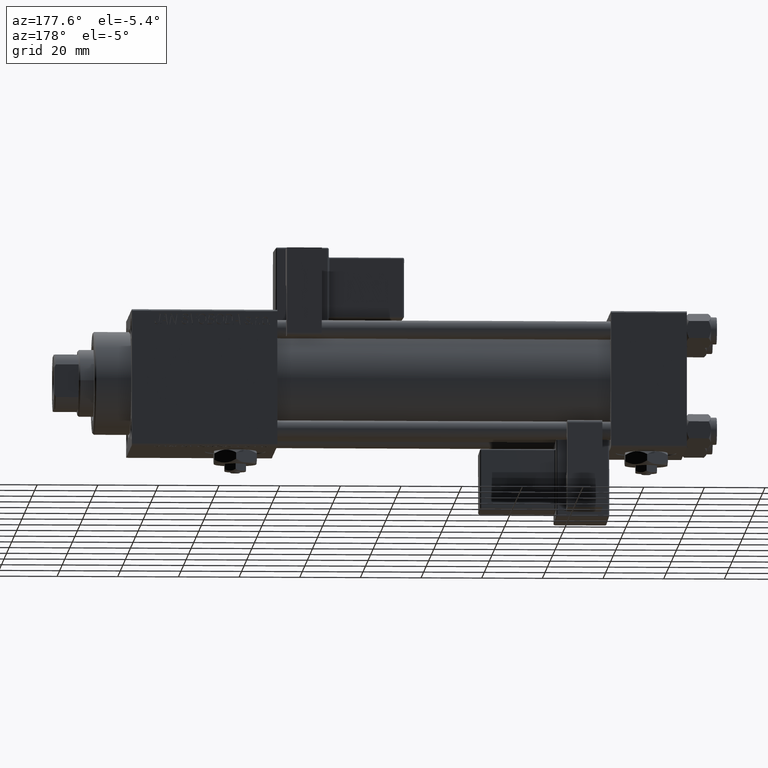
[diagram: clean part render]
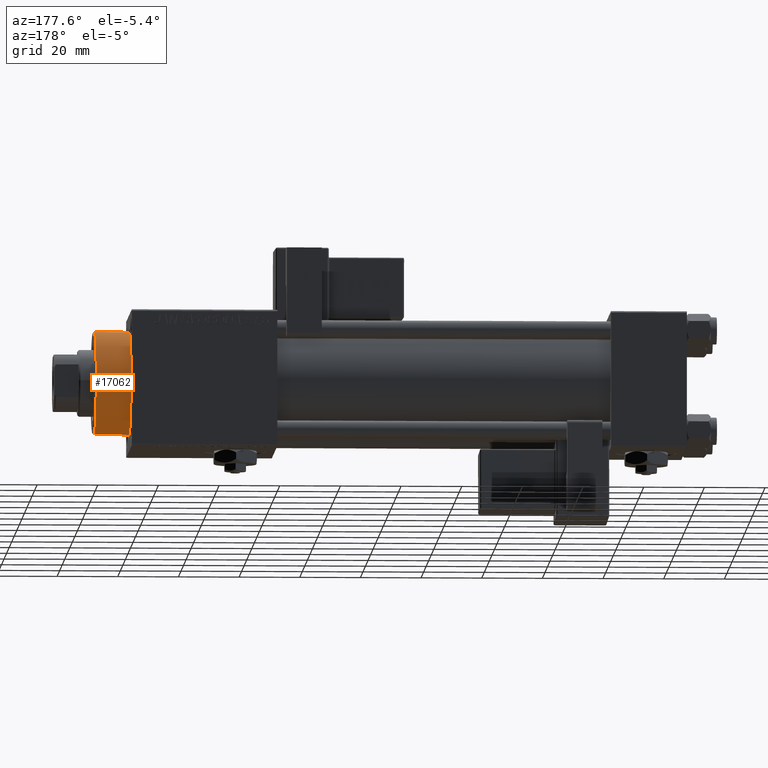
[diagram: same view with one face highlighted and labeled with its STEP entity id]
A machine part, auxiliary view. The second image highlights one B-rep face of the part: STEP entity #17062.
In plain terms, the highlighted cylindrical surface (partial cylindrical patch) has radius 17 mm, axis along (-1, -0, -0).
Its self-contained STEP definition (entity closure, byte-faithful):
#1373 = CARTESIAN_POINT ( 'NONE',  ( 17.00000000000000000, 2.081899558550500280E-15, 40.19999999999999574 ) ) ;
#1840 = CARTESIAN_POINT ( 'NONE',  ( 0.000000000000000000, 0.000000000000000000, 28.69999999999999929 ) ) ;
#2696 = LINE ( 'NONE', #19900, #8208 ) ;
#5946 = AXIS2_PLACEMENT_3D ( 'NONE', #52125, #13479, #39434 ) ;
#7276 = EDGE_LOOP ( 'NONE', ( #46513, #54815, #14120, #15779 ) ) ;
#8208 = VECTOR ( 'NONE', #37109, 1000.000000000000000 ) ;
#8328 = VECTOR ( 'NONE', #11072, 1000.000000000000000 ) ;
#11072 = DIRECTION ( 'NONE',  ( -0.000000000000000000, -0.000000000000000000, -1.000000000000000000 ) ) ;
#13479 = DIRECTION ( 'NONE',  ( 0.000000000000000000, 0.000000000000000000, -1.000000000000000000 ) ) ;
#14120 = ORIENTED_EDGE ( 'NONE', *, *, #41898, .T. ) ;
#14584 = FACE_OUTER_BOUND ( 'NONE', #7276, .T. ) ;
#15779 = ORIENTED_EDGE ( 'NONE', *, *, #17900, .F. ) ;
#17062 = ADVANCED_FACE ( 'NONE', ( #14584 ), #49547, .T. ) ;
#17900 = EDGE_CURVE ( 'NONE', #45756, #44098, #2696, .T. ) ;
#18542 = DIRECTION ( 'NONE',  ( -1.000000000000000000, 0.000000000000000000, 0.000000000000000000 ) ) ;
#19735 = CARTESIAN_POINT ( 'NONE',  ( 17.00000000000000000, 2.081899558550500280E-15, 28.69999999999999929 ) ) ;
#19900 = CARTESIAN_POINT ( 'NONE',  ( -17.00000000000000000, 0.000000000000000000, 40.70000000000000284 ) ) ;
#20648 = LINE ( 'NONE', #55319, #8328 ) ;
#25957 = EDGE_CURVE ( 'NONE', #45756, #31614, #46453, .T. ) ;
#30990 = AXIS2_PLACEMENT_3D ( 'NONE', #1840, #35696, #52915 ) ;
#31521 = CARTESIAN_POINT ( 'NONE',  ( 0.000000000000000000, 0.000000000000000000, 40.70000000000000284 ) ) ;
#31614 = VERTEX_POINT ( 'NONE', #1373 ) ;
#35696 = DIRECTION ( 'NONE',  ( 0.000000000000000000, 0.000000000000000000, 1.000000000000000000 ) ) ;
#36856 = DIRECTION ( 'NONE',  ( -0.000000000000000000, -0.000000000000000000, -1.000000000000000000 ) ) ;
#37109 = DIRECTION ( 'NONE',  ( -0.000000000000000000, -0.000000000000000000, -1.000000000000000000 ) ) ;
#39434 = DIRECTION ( 'NONE',  ( 1.000000000000000000, 0.000000000000000000, 0.000000000000000000 ) ) ;
#39509 = EDGE_CURVE ( 'NONE', #31614, #52325, #20648, .T. ) ;
#41898 = EDGE_CURVE ( 'NONE', #52325, #44098, #55285, .T. ) ;
#44098 = VERTEX_POINT ( 'NONE', #44505 ) ;
#44505 = CARTESIAN_POINT ( 'NONE',  ( -17.00000000000000000, 0.000000000000000000, 28.69999999999999929 ) ) ;
#45756 = VERTEX_POINT ( 'NONE', #47609 ) ;
#46093 = AXIS2_PLACEMENT_3D ( 'NONE', #31521, #36856, #18542 ) ;
#46453 = CIRCLE ( 'NONE', #5946, 17.00000000000000000 ) ;
#46513 = ORIENTED_EDGE ( 'NONE', *, *, #25957, .T. ) ;
#47609 = CARTESIAN_POINT ( 'NONE',  ( -17.00000000000000000, 0.000000000000000000, 40.19999999999999574 ) ) ;
#49547 = CYLINDRICAL_SURFACE ( 'NONE', #46093, 17.00000000000000000 ) ;
#52125 = CARTESIAN_POINT ( 'NONE',  ( 0.000000000000000000, 0.000000000000000000, 40.19999999999999574 ) ) ;
#52325 = VERTEX_POINT ( 'NONE', #19735 ) ;
#52915 = DIRECTION ( 'NONE',  ( 1.000000000000000000, 0.000000000000000000, 0.000000000000000000 ) ) ;
#54815 = ORIENTED_EDGE ( 'NONE', *, *, #39509, .T. ) ;
#55285 = CIRCLE ( 'NONE', #30990, 17.00000000000000000 ) ;
#55319 = CARTESIAN_POINT ( 'NONE',  ( 17.00000000000000000, 2.081899558550500280E-15, 40.70000000000000284 ) ) ;